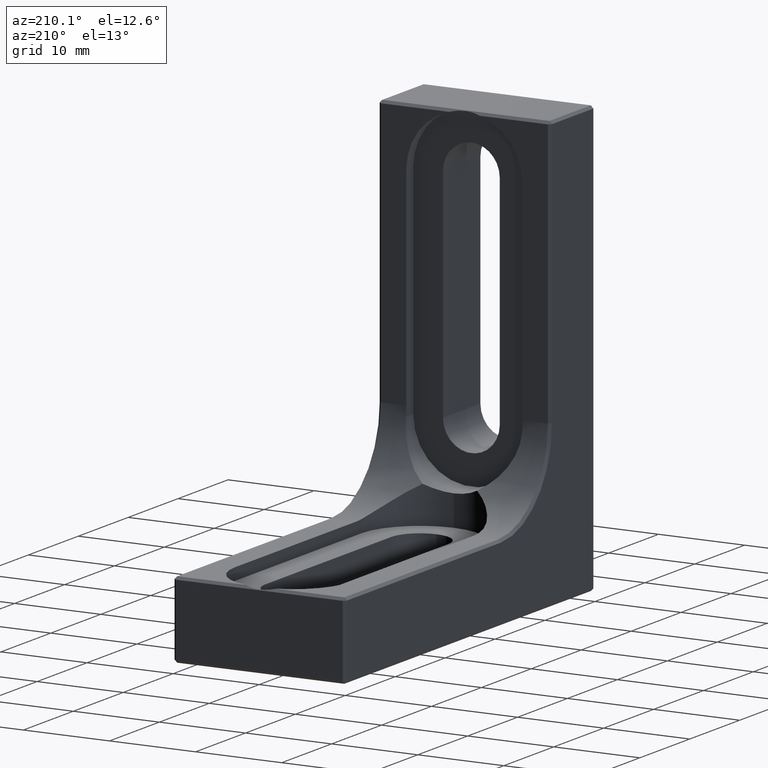
[diagram: clean part render]
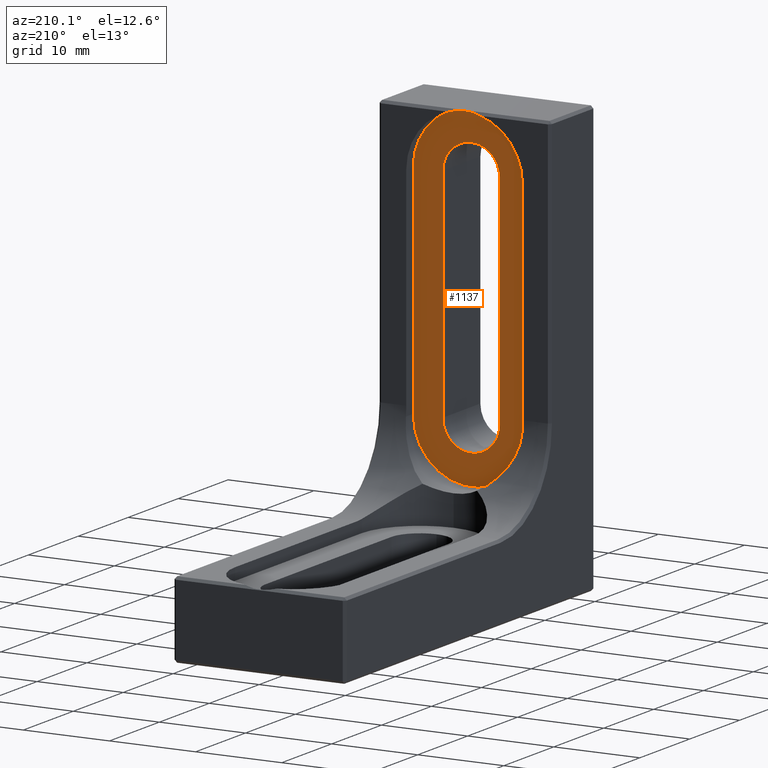
[diagram: same view with one face highlighted and labeled with its STEP entity id]
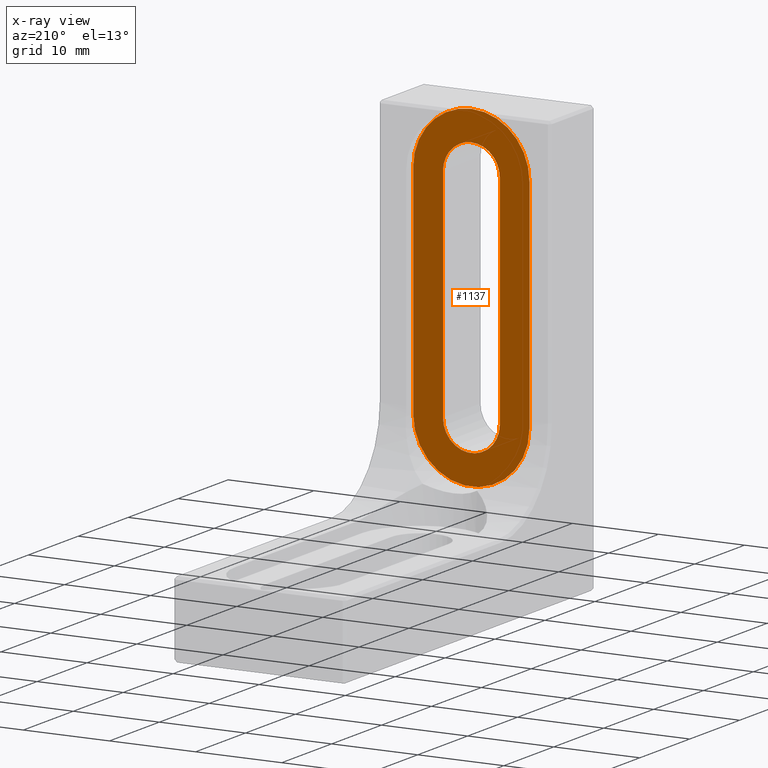
[diagram: x-ray of the same camera — body ghosted, the highlighted face saturated]
A machine part, auxiliary view. The second image highlights one B-rep face of the part: STEP entity #1137.
The next image is the same camera in x-ray: the body ghosted, the highlighted face saturated — about 0% of this face is hidden behind the body in this view.
In plain terms, the highlighted planar face has unit normal (0, 1, 0).
Its self-contained STEP definition (entity closure, byte-faithful):
#7 = CARTESIAN_POINT ( 'NONE',  ( 6.750000000000000000, 7.500000000000000000, 17.78999999999999204 ) ) ;
#18 = DIRECTION ( 'NONE',  ( 1.195183497228115035E-16, -0.000000000000000000, 1.000000000000000000 ) ) ;
#59 = DIRECTION ( 'NONE',  ( 0.000000000000000000, 0.000000000000000000, 1.000000000000000000 ) ) ;
#82 = CIRCLE ( 'NONE', #1162, 3.299999999999997158 ) ;
#83 = VERTEX_POINT ( 'NONE', #1388 ) ;
#85 = DIRECTION ( 'NONE',  ( 0.000000000000000000, 1.000000000000000000, 0.000000000000000000 ) ) ;
#91 = ORIENTED_EDGE ( 'NONE', *, *, #861, .T. ) ;
#100 = CARTESIAN_POINT ( 'NONE',  ( 3.299999999999999822, 7.500000000000000000, 17.78999999999999204 ) ) ;
#120 = ORIENTED_EDGE ( 'NONE', *, *, #1573, .T. ) ;
#121 = AXIS2_PLACEMENT_3D ( 'NONE', #1048, #1459, #1040 ) ;
#125 = ORIENTED_EDGE ( 'NONE', *, *, #1853, .T. ) ;
#156 = VERTEX_POINT ( 'NONE', #1371 ) ;
#201 = ORIENTED_EDGE ( 'NONE', *, *, #1463, .T. ) ;
#231 = CARTESIAN_POINT ( 'NONE',  ( -3.299999999999997158, 7.500000000000000000, 43.18999999999999062 ) ) ;
#265 = FACE_BOUND ( 'NONE', #512, .T. ) ;
#292 = DIRECTION ( 'NONE',  ( 0.000000000000000000, 0.000000000000000000, 1.000000000000000000 ) ) ;
#322 = CARTESIAN_POINT ( 'NONE',  ( 2.975891721928067571E-15, 7.500000000000000000, 46.48999999999998778 ) ) ;
#420 = CIRCLE ( 'NONE', #632, 6.749999999999999112 ) ;
#425 = DIRECTION ( 'NONE',  ( 0.000000000000000000, -0.000000000000000000, 1.000000000000000000 ) ) ;
#452 = VECTOR ( 'NONE', #18, 1000.000000000000000 ) ;
#466 = CARTESIAN_POINT ( 'NONE',  ( 2.975891721928067571E-15, 7.500000000000000000, 43.18999999999999062 ) ) ;
#506 = CARTESIAN_POINT ( 'NONE',  ( 0.000000000000000000, 7.500000000000000000, 17.78999999999999204 ) ) ;
#512 = EDGE_LOOP ( 'NONE', ( #91, #201, #1835, #120, #1373 ) ) ;
#545 = CARTESIAN_POINT ( 'NONE',  ( -6.750000000000000000, 7.500000000000000000, 17.78999999999999204 ) ) ;
#555 = DIRECTION ( 'NONE',  ( -1.195183497228115035E-16, 0.000000000000000000, -1.000000000000000000 ) ) ;
#558 = FACE_OUTER_BOUND ( 'NONE', #1605, .T. ) ;
#598 = PLANE ( 'NONE',  #1554 ) ;
#606 = LINE ( 'NONE', #1188, #1623 ) ;
#610 = ORIENTED_EDGE ( 'NONE', *, *, #1343, .T. ) ;
#632 = AXIS2_PLACEMENT_3D ( 'NONE', #466, #1619, #292 ) ;
#646 = ORIENTED_EDGE ( 'NONE', *, *, #1509, .T. ) ;
#661 = VERTEX_POINT ( 'NONE', #1516 ) ;
#674 = DIRECTION ( 'NONE',  ( 0.000000000000000000, 0.000000000000000000, 1.000000000000000000 ) ) ;
#682 = VERTEX_POINT ( 'NONE', #1081 ) ;
#683 = DIRECTION ( 'NONE',  ( 0.000000000000000000, 0.000000000000000000, 1.000000000000000000 ) ) ;
#693 = CARTESIAN_POINT ( 'NONE',  ( 2.975891721928067571E-15, 7.500000000000000000, 43.18999999999999062 ) ) ;
#716 = DIRECTION ( 'NONE',  ( 0.000000000000000000, 1.000000000000000000, 0.000000000000000000 ) ) ;
#735 = DIRECTION ( 'NONE',  ( 0.000000000000000000, 1.000000000000000000, 0.000000000000000000 ) ) ;
#756 = ORIENTED_EDGE ( 'NONE', *, *, #767, .T. ) ;
#767 = EDGE_CURVE ( 'NONE', #682, #156, #1481, .T. ) ;
#789 = VERTEX_POINT ( 'NONE', #1568 ) ;
#848 = ORIENTED_EDGE ( 'NONE', *, *, #926, .T. ) ;
#861 = EDGE_CURVE ( 'NONE', #1019, #83, #1901, .T. ) ;
#926 = EDGE_CURVE ( 'NONE', #156, #789, #420, .T. ) ;
#936 = DIRECTION ( 'NONE',  ( -0.000000000000000000, -1.000000000000000000, -0.000000000000000000 ) ) ;
#985 = LINE ( 'NONE', #1275, #1597 ) ;
#1011 = VERTEX_POINT ( 'NONE', #231 ) ;
#1018 = CARTESIAN_POINT ( 'NONE',  ( -3.299999999999999822, 7.500000000000000000, 17.78999999999999204 ) ) ;
#1019 = VERTEX_POINT ( 'NONE', #100 ) ;
#1040 = DIRECTION ( 'NONE',  ( 0.000000000000000000, 0.000000000000000000, 1.000000000000000000 ) ) ;
#1041 = CIRCLE ( 'NONE', #1692, 6.749999999999999112 ) ;
#1048 = CARTESIAN_POINT ( 'NONE',  ( 2.975891721928067571E-15, 7.500000000000000000, 43.18999999999999062 ) ) ;
#1081 = CARTESIAN_POINT ( 'NONE',  ( -6.749999999999997335, 7.500000000000000000, 43.18999999999999062 ) ) ;
#1118 = VERTEX_POINT ( 'NONE', #7 ) ;
#1125 = DIRECTION ( 'NONE',  ( 1.365923996832131609E-16, 0.000000000000000000, 1.000000000000000000 ) ) ;
#1137 = ADVANCED_FACE ( 'NONE', ( #558, #265 ), #598, .T. ) ;
#1150 = AXIS2_PLACEMENT_3D ( 'NONE', #693, #716, #683 ) ;
#1162 = AXIS2_PLACEMENT_3D ( 'NONE', #1539, #1848, #1559 ) ;
#1182 = VERTEX_POINT ( 'NONE', #1018 ) ;
#1184 = CARTESIAN_POINT ( 'NONE',  ( 3.299999999999999822, 7.500000000000000000, 17.78999999999999204 ) ) ;
#1188 = CARTESIAN_POINT ( 'NONE',  ( 6.750000000000000000, 7.500000000000000000, 17.78999999999999204 ) ) ;
#1257 = VERTEX_POINT ( 'NONE', #322 ) ;
#1275 = CARTESIAN_POINT ( 'NONE',  ( -3.299999999999999822, 7.500000000000000000, 17.78999999999999204 ) ) ;
#1308 = VECTOR ( 'NONE', #1125, 1000.000000000000000 ) ;
#1343 = EDGE_CURVE ( 'NONE', #789, #1118, #606, .T. ) ;
#1371 = CARTESIAN_POINT ( 'NONE',  ( 2.975891721928067571E-15, 7.500000000000000000, 49.93999999999999062 ) ) ;
#1373 = ORIENTED_EDGE ( 'NONE', *, *, #1884, .T. ) ;
#1376 = CARTESIAN_POINT ( 'NONE',  ( 0.000000000000000000, 7.500000000000000000, 17.78999999999999204 ) ) ;
#1388 = CARTESIAN_POINT ( 'NONE',  ( 3.300000000000002931, 7.500000000000000000, 43.18999999999999062 ) ) ;
#1399 = CIRCLE ( 'NONE', #121, 3.299999999999997158 ) ;
#1420 = CARTESIAN_POINT ( 'NONE',  ( 0.000000000000000000, 7.500000000000000000, 17.78999999999999204 ) ) ;
#1459 = DIRECTION ( 'NONE',  ( -0.000000000000000000, -1.000000000000000000, -0.000000000000000000 ) ) ;
#1463 = EDGE_CURVE ( 'NONE', #83, #1257, #82, .T. ) ;
#1479 = DIRECTION ( 'NONE',  ( -1.365923996832131609E-16, -0.000000000000000000, -1.000000000000000000 ) ) ;
#1481 = CIRCLE ( 'NONE', #1150, 6.749999999999999112 ) ;
#1509 = EDGE_CURVE ( 'NONE', #661, #682, #1859, .T. ) ;
#1516 = CARTESIAN_POINT ( 'NONE',  ( -6.750000000000000000, 7.500000000000000000, 17.78999999999999204 ) ) ;
#1539 = CARTESIAN_POINT ( 'NONE',  ( 2.975891721928067571E-15, 7.500000000000000000, 43.18999999999999062 ) ) ;
#1554 = AXIS2_PLACEMENT_3D ( 'NONE', #1420, #735, #425 ) ;
#1559 = DIRECTION ( 'NONE',  ( 0.000000000000000000, 0.000000000000000000, 1.000000000000000000 ) ) ;
#1568 = CARTESIAN_POINT ( 'NONE',  ( 6.750000000000003553, 7.500000000000000000, 43.18999999999999062 ) ) ;
#1573 = EDGE_CURVE ( 'NONE', #1011, #1182, #985, .T. ) ;
#1597 = VECTOR ( 'NONE', #555, 1000.000000000000000 ) ;
#1605 = EDGE_LOOP ( 'NONE', ( #125, #646, #756, #848, #610 ) ) ;
#1619 = DIRECTION ( 'NONE',  ( 0.000000000000000000, 1.000000000000000000, 0.000000000000000000 ) ) ;
#1623 = VECTOR ( 'NONE', #1479, 1000.000000000000000 ) ;
#1629 = CIRCLE ( 'NONE', #1875, 3.300000000000000711 ) ;
#1645 = EDGE_CURVE ( 'NONE', #1257, #1011, #1399, .T. ) ;
#1692 = AXIS2_PLACEMENT_3D ( 'NONE', #1376, #85, #59 ) ;
#1835 = ORIENTED_EDGE ( 'NONE', *, *, #1645, .T. ) ;
#1848 = DIRECTION ( 'NONE',  ( -0.000000000000000000, -1.000000000000000000, -0.000000000000000000 ) ) ;
#1853 = EDGE_CURVE ( 'NONE', #1118, #661, #1041, .T. ) ;
#1859 = LINE ( 'NONE', #545, #1308 ) ;
#1875 = AXIS2_PLACEMENT_3D ( 'NONE', #506, #936, #674 ) ;
#1884 = EDGE_CURVE ( 'NONE', #1182, #1019, #1629, .T. ) ;
#1901 = LINE ( 'NONE', #1184, #452 ) ;